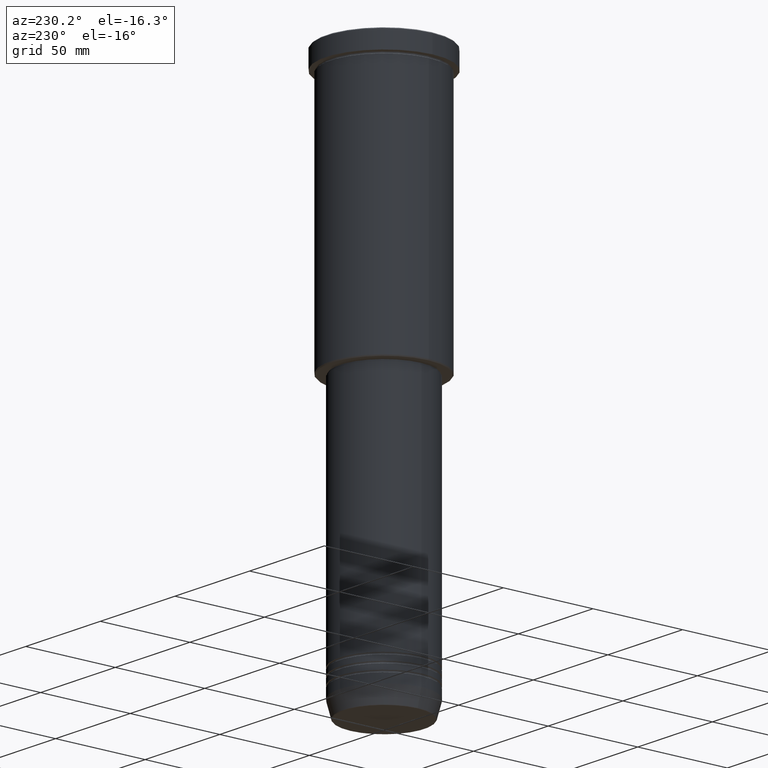
[diagram: clean part render]
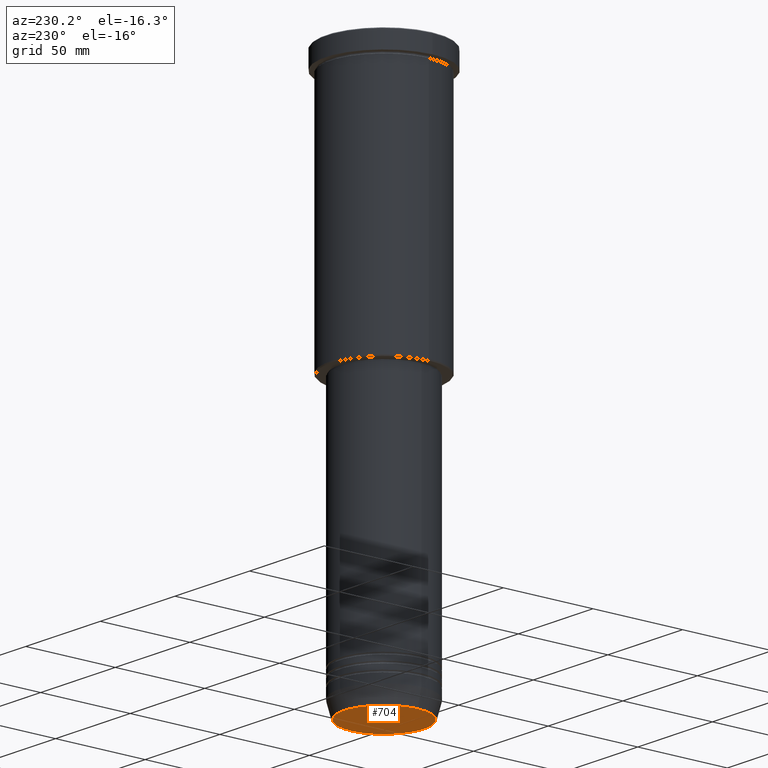
[diagram: same view with one face highlighted and labeled with its STEP entity id]
A machine part, auxiliary view. The second image highlights one B-rep face of the part: STEP entity #704.
In plain terms, the highlighted planar face has unit normal (0, -0, 1).
Its self-contained STEP definition (entity closure, byte-faithful):
#119 = CARTESIAN_POINT ( 'NONE',  ( -22.20479377413040467, 2.748875911406054788E-15, -300.0000000000000000 ) ) ;
#137 = AXIS2_PLACEMENT_3D ( 'NONE', #977, #425, #1044 ) ;
#175 = VERTEX_POINT ( 'NONE', #119 ) ;
#231 = AXIS2_PLACEMENT_3D ( 'NONE', #725, #1089, #257 ) ;
#257 = DIRECTION ( 'NONE',  ( 1.000000000000000000, 0.000000000000000000, 0.000000000000000000 ) ) ;
#303 = CIRCLE ( 'NONE', #477, 22.20479377413040467 ) ;
#319 = CARTESIAN_POINT ( 'NONE',  ( 22.20479377413040467, 0.000000000000000000, -300.0000000000000000 ) ) ;
#335 = DIRECTION ( 'NONE',  ( 1.000000000000000000, 0.000000000000000000, 0.000000000000000000 ) ) ;
#349 = EDGE_CURVE ( 'NONE', #175, #802, #303, .T. ) ;
#425 = DIRECTION ( 'NONE',  ( 0.000000000000000000, 0.000000000000000000, -1.000000000000000000 ) ) ;
#440 = FACE_OUTER_BOUND ( 'NONE', #1124, .T. ) ;
#477 = AXIS2_PLACEMENT_3D ( 'NONE', #877, #1153, #335 ) ;
#572 = ORIENTED_EDGE ( 'NONE', *, *, #746, .T. ) ;
#704 = ADVANCED_FACE ( 'NONE', ( #440 ), #810, .F. ) ;
#725 = CARTESIAN_POINT ( 'NONE',  ( 0.000000000000000000, 0.000000000000000000, -300.0000000000000000 ) ) ;
#746 = EDGE_CURVE ( 'NONE', #802, #175, #1097, .T. ) ;
#802 = VERTEX_POINT ( 'NONE', #319 ) ;
#810 = PLANE ( 'NONE',  #231 ) ;
#877 = CARTESIAN_POINT ( 'NONE',  ( 0.000000000000000000, 0.000000000000000000, -300.0000000000000000 ) ) ;
#977 = CARTESIAN_POINT ( 'NONE',  ( 0.000000000000000000, 0.000000000000000000, -300.0000000000000000 ) ) ;
#1044 = DIRECTION ( 'NONE',  ( 1.000000000000000000, 0.000000000000000000, 0.000000000000000000 ) ) ;
#1089 = DIRECTION ( 'NONE',  ( 0.000000000000000000, -0.000000000000000000, 1.000000000000000000 ) ) ;
#1097 = CIRCLE ( 'NONE', #137, 22.20479377413040467 ) ;
#1124 = EDGE_LOOP ( 'NONE', ( #572, #1182 ) ) ;
#1153 = DIRECTION ( 'NONE',  ( 0.000000000000000000, 0.000000000000000000, -1.000000000000000000 ) ) ;
#1182 = ORIENTED_EDGE ( 'NONE', *, *, #349, .T. ) ;